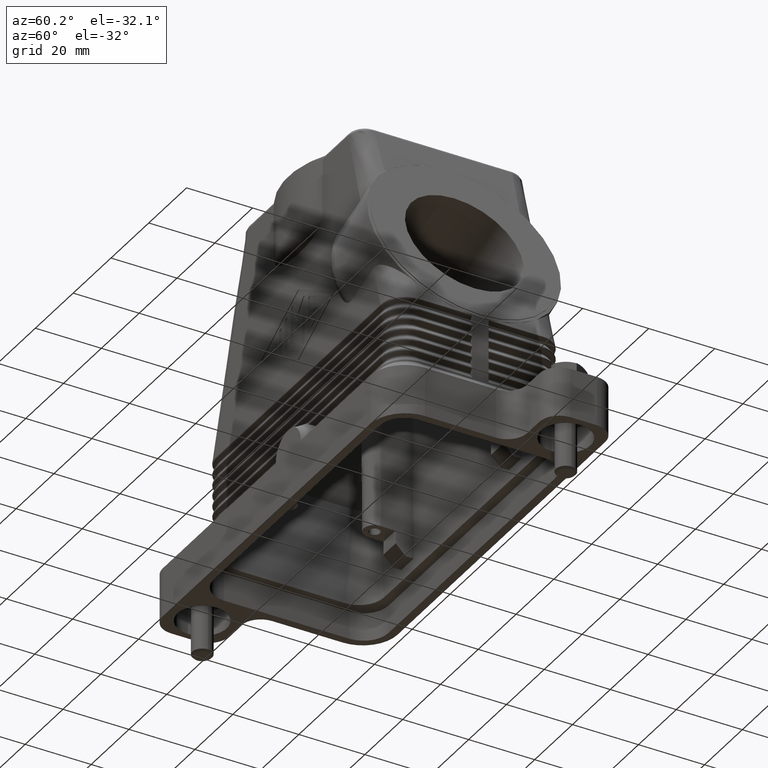
[diagram: clean part render]
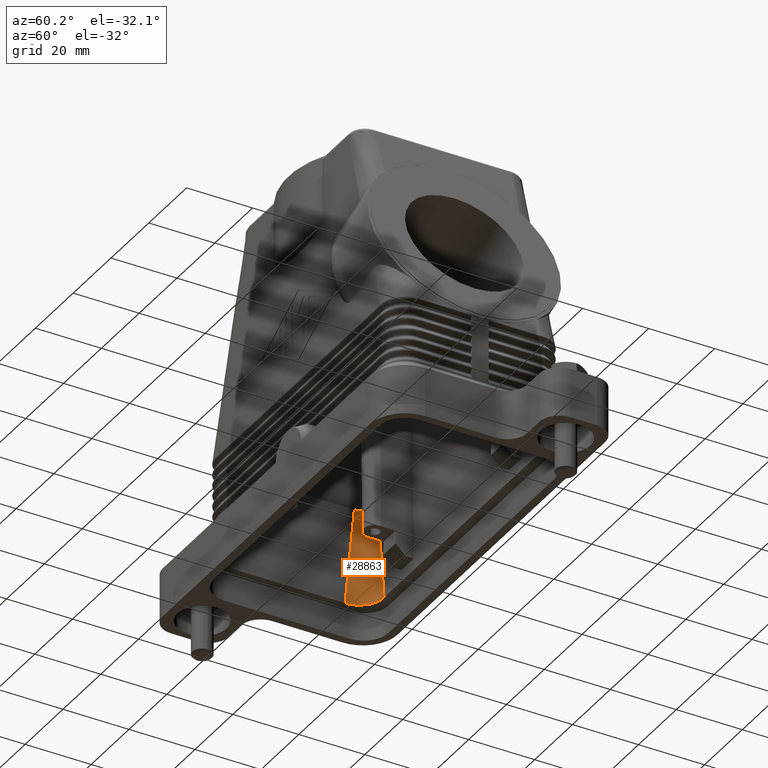
[diagram: same view with one face highlighted and labeled with its STEP entity id]
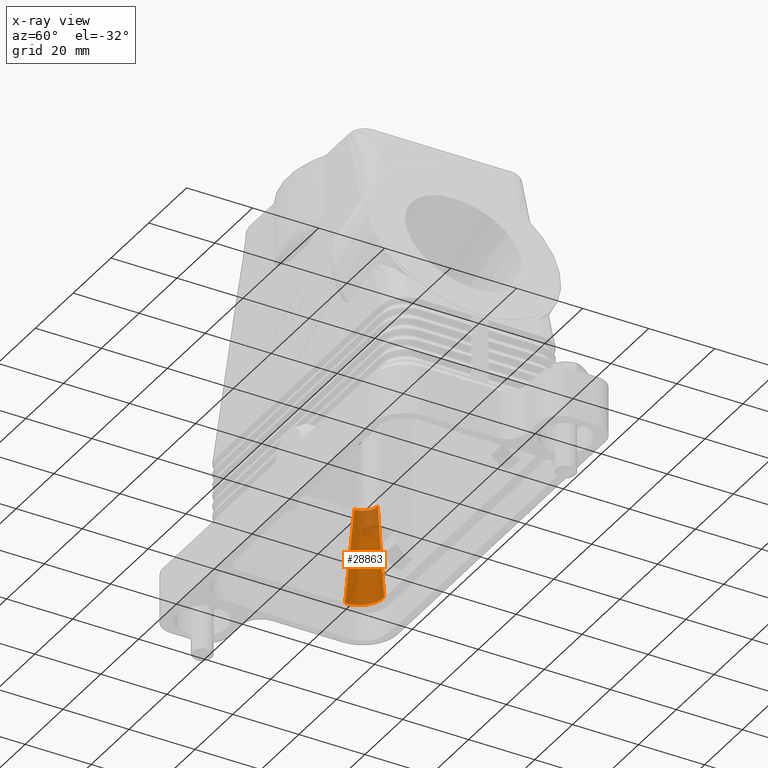
[diagram: x-ray of the same camera — body ghosted, the highlighted face saturated]
A machine part, auxiliary view. The second image highlights one B-rep face of the part: STEP entity #28863.
The next image is the same camera in x-ray: the body ghosted, the highlighted face saturated — about 15% of this face is hidden behind the body in this view.
In plain terms, the highlighted face is a freeform B-spline surface patch.
Its self-contained STEP definition (entity closure, byte-faithful):
#26158=CARTESIAN_POINT('',(-48.0,18.500000000000007,38.0));
#26159=VERTEX_POINT('',#26158);
#26330=CARTESIAN_POINT('',(-43.500000000000000,23.000000000000007,38.0));
#26331=VERTEX_POINT('',#26330);
#26467=CARTESIAN_POINT('',(-43.667418630545789,22.996884588484146,38.0));
#26468=VERTEX_POINT('',#26467);
#26469=CARTESIAN_POINT('',(-43.500000000000000,18.500000000000007,38.0));
#26470=DIRECTION('',(0.0,0.0,1.0));
#26471=DIRECTION('',(0.0,-1.0,0.0));
#26472=AXIS2_PLACEMENT_3D('',#26469,#26470,#26471);
#26473=CIRCLE('',#26472,4.500000000000000);
#26474=EDGE_CURVE('',#26468,#26159,#26473,.T.);
#26476=CARTESIAN_POINT('',(-43.500000000000000,18.500000000000007,38.0));
#26477=DIRECTION('',(0.0,0.0,1.0));
#26478=DIRECTION('',(0.0,-1.0,0.0));
#26479=AXIS2_PLACEMENT_3D('',#26476,#26477,#26478);
#26480=CIRCLE('',#26479,4.500000000000000);
#26481=EDGE_CURVE('',#26331,#26468,#26480,.T.);
#27179=CARTESIAN_POINT('',(-41.0,23.500000000000007,8.500000000000000));
#27180=VERTEX_POINT('',#27179);
#27181=CARTESIAN_POINT('',(-41.0,23.500000000000007,8.500000000000000));
#27182=CARTESIAN_POINT('',(-41.833333333333329,23.333333333333339,18.333333333333336));
#27183=CARTESIAN_POINT('',(-42.666666666666664,23.166666666666671,28.166666666666668));
#27184=CARTESIAN_POINT('',(-43.500000000000000,23.000000000000007,38.0));
#27185=QUASI_UNIFORM_CURVE('',3,(#27181,#27182,#27183,#27184),.UNSPECIFIED.,.F.,.U.);
#27186=EDGE_CURVE('',#27180,#26331,#27185,.T.);
#28592=CARTESIAN_POINT('',(-48.500000000000000,16.000000000000007,8.500000000000000));
#28593=VERTEX_POINT('',#28592);
#28602=CARTESIAN_POINT('',(-48.500000000000000,16.000000000000007,8.500000000000000));
#28603=CARTESIAN_POINT('',(-48.333333333333329,16.833333333333339,18.333333333333336));
#28604=CARTESIAN_POINT('',(-48.166666666666664,17.666666666666671,28.166666666666668));
#28605=CARTESIAN_POINT('',(-48.0,18.500000000000007,38.0));
#28606=QUASI_UNIFORM_CURVE('',3,(#28602,#28603,#28604,#28605),.UNSPECIFIED.,.F.,.U.);
#28607=EDGE_CURVE('',#28593,#26159,#28606,.T.);
#28803=CARTESIAN_POINT('',(-41.0,23.500000000000007,8.500000000000000));
#28804=CARTESIAN_POINT('',(-42.472621556370214,23.500000000000007,8.500000000000000));
#28805=CARTESIAN_POINT('',(-43.942336673103497,23.054166793491383,8.500000000000000));
#28806=CARTESIAN_POINT('',(-45.574923439161523,21.963307191861663,8.500000000000000));
#28807=CARTESIAN_POINT('',(-45.956200629355479,21.650401088442734,8.500000000000000));
#28808=CARTESIAN_POINT('',(-46.997501317986348,20.609100399811865,8.500000000000000));
#28809=CARTESIAN_POINT('',(-47.553397912656919,19.777142352781752,8.500000000000000));
#28810=CARTESIAN_POINT('',(-48.304795075012365,17.963109132694608,8.500000000000000));
#28811=CARTESIAN_POINT('',(-48.500000000000000,16.981747704246814,8.500000000000000));
#28812=CARTESIAN_POINT('',(-48.500000000000000,16.000000000000007,8.500000000000000));
#28813=CARTESIAN_POINT('',(-41.833333333333329,23.333333333333339,18.333333333333336));
#28814=CARTESIAN_POINT('',(-43.109605348854181,23.333333333333339,18.333333333333336));
#28815=CARTESIAN_POINT('',(-44.383358450023032,22.946944554359202,18.333333333333336));
#28816=CARTESIAN_POINT('',(-45.798266980606648,22.001532899613444,18.333333333333336));
#28817=CARTESIAN_POINT('',(-46.128707212108083,21.730347609983703,18.333333333333336));
#28818=CARTESIAN_POINT('',(-47.031167808921509,20.827887013170283,18.333333333333336));
#28819=CARTESIAN_POINT('',(-47.512944857636001,20.106856705744182,18.333333333333336));
#28820=CARTESIAN_POINT('',(-48.164155731677383,18.534694581668660,18.333333333333336));
#28821=CARTESIAN_POINT('',(-48.333333333333329,17.684181343680574,18.333333333333336));
#28822=CARTESIAN_POINT('',(-48.333333333333329,16.833333333333339,18.333333333333336));
#28823=CARTESIAN_POINT('',(-42.666666666666664,23.166666666666671,28.166666666666668));
#28824=CARTESIAN_POINT('',(-43.746589141338163,23.166666666666671,28.166666666666668));
#28825=CARTESIAN_POINT('',(-44.824380226942566,22.839722315227018,28.166666666666668));
#28826=CARTESIAN_POINT('',(-46.021610522051773,22.039758607365222,28.166666666666668));
#28827=CARTESIAN_POINT('',(-46.301213794860686,21.810294131524671,28.166666666666668));
#28828=CARTESIAN_POINT('',(-47.064834299856656,21.046673626528705,28.166666666666668));
#28829=CARTESIAN_POINT('',(-47.472491802615082,20.436571058706615,28.166666666666668));
#28830=CARTESIAN_POINT('',(-48.023516388342394,19.106280030642711,28.166666666666668));
#28831=CARTESIAN_POINT('',(-48.166666666666664,18.386614983114331,28.166666666666668));
#28832=CARTESIAN_POINT('',(-48.166666666666664,17.666666666666671,28.166666666666668));
#28833=CARTESIAN_POINT('',(-43.500000000000000,23.000000000000007,38.0));
#28834=CARTESIAN_POINT('',(-44.383572933822123,23.000000000000007,38.0));
#28835=CARTESIAN_POINT('',(-45.265402003862093,22.732500076094837,38.0));
#28836=CARTESIAN_POINT('',(-46.244954063496905,22.077984315117007,38.0));
#28837=CARTESIAN_POINT('',(-46.473720377613290,21.890240653065639,38.0));
#28838=CARTESIAN_POINT('',(-47.098500790791810,21.265460239887123,38.0));
#28839=CARTESIAN_POINT('',(-47.432038747594156,20.766285411669049,38.0));
#28840=CARTESIAN_POINT('',(-47.882877045007419,19.677865479616766,38.0));
#28841=CARTESIAN_POINT('',(-48.0,19.089048622548091,38.0));
#28842=CARTESIAN_POINT('',(-48.0,18.500000000000007,38.0));
#28843=B_SPLINE_SURFACE_WITH_KNOTS('',3,3,((#28803,#28813,#28823,#28833),(#28804,#28814,#28824,#28834),(#28805,#28815,#28825,#28835),(#28806,#28816,#28826,#28836),(#28807,#28817,#28827,#28837),(#28808,#28818,#28828,#28838),(#28809,#28819,#28829,#28839),(#28810,#28820,#28830,#28840),(#28811,#28821,#28831,#28841),(#28812,#28822,#28832,#28842)),.UNSPECIFIED.,.F.,.F.,.U.,(4,2,2,2,4),(4,4),(0.0,0.375000000000000,0.500000000000000,0.750000000000000,1.0),(0.0,1.0),.UNSPECIFIED.);
#28844=CARTESIAN_POINT('',(-41.0,23.500000000000007,8.500000000000000));
#28845=CARTESIAN_POINT('',(-42.472621556370214,23.500000000000007,8.500000000000000));
#28846=CARTESIAN_POINT('',(-43.942336673103497,23.054166793491383,8.500000000000000));
#28847=CARTESIAN_POINT('',(-45.574923439161523,21.963307191861663,8.500000000000000));
#28848=CARTESIAN_POINT('',(-45.956200629355479,21.650401088442734,8.500000000000000));
#28849=CARTESIAN_POINT('',(-46.997501317986348,20.609100399811865,8.500000000000000));
#28850=CARTESIAN_POINT('',(-47.553397912656919,19.777142352781752,8.500000000000000));
#28851=CARTESIAN_POINT('',(-48.304795075012365,17.963109132694608,8.500000000000000));
#28852=CARTESIAN_POINT('',(-48.500000000000000,16.981747704246814,8.500000000000000));
#28853=CARTESIAN_POINT('',(-48.500000000000000,16.000000000000007,8.500000000000000));
#28854=B_SPLINE_CURVE_WITH_KNOTS('',3,(#28844,#28845,#28846,#28847,#28848,#28849,#28850,#28851,#28852,#28853),.UNSPECIFIED.,.F.,.U.,(4,2,2,2,4),(0.0,0.375000000000000,0.500000000000000,0.750000000000000,1.0),.UNSPECIFIED.);
#28855=EDGE_CURVE('',#27180,#28593,#28854,.T.);
#28856=ORIENTED_EDGE('',*,*,#28855,.F.);
#28857=ORIENTED_EDGE('',*,*,#27186,.T.);
#28858=ORIENTED_EDGE('',*,*,#26481,.T.);
#28859=ORIENTED_EDGE('',*,*,#26474,.T.);
#28860=ORIENTED_EDGE('',*,*,#28607,.F.);
#28861=EDGE_LOOP('',(#28856,#28857,#28858,#28859,#28860));
#28862=FACE_OUTER_BOUND('',#28861,.T.);
#28863=ADVANCED_FACE('',(#28862),#28843,.F.);